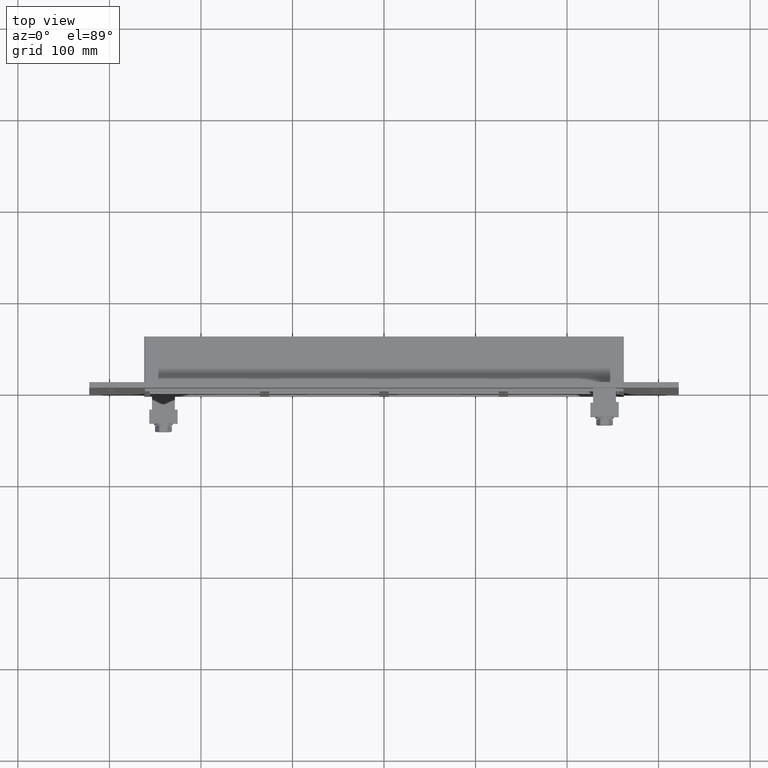
[diagram: clean part render]
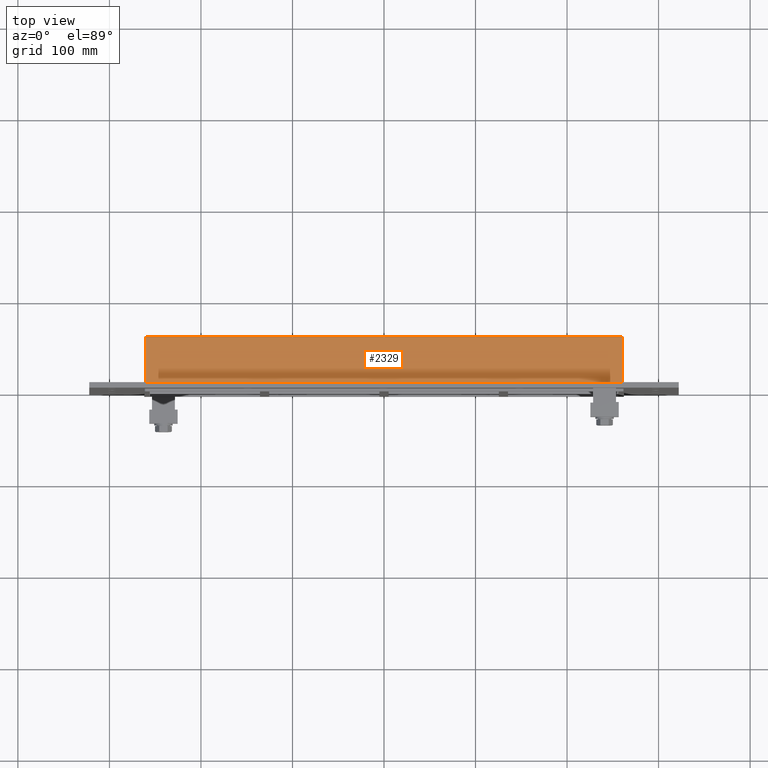
[diagram: same view with one face highlighted and labeled with its STEP entity id]
A machine part, top view. The second image highlights one B-rep face of the part: STEP entity #2329.
In plain terms, the highlighted planar face has unit normal (0, 0, 1).
Its self-contained STEP definition (entity closure, byte-faithful):
#1192=CARTESIAN_POINT('',(-260.0,57.0,171.50000000000003));
#1193=VERTEX_POINT('',#1192);
#1201=CARTESIAN_POINT('',(260.0,57.0,171.50000000000003));
#1202=VERTEX_POINT('',#1201);
#1203=CARTESIAN_POINT('',(-260.0,57.0,171.50000000000003));
#1204=DIRECTION('',(1.0,0.0,0.0));
#1205=VECTOR('',#1204,520.0);
#1206=LINE('',#1203,#1205);
#1207=EDGE_CURVE('',#1193,#1202,#1206,.T.);
#1753=CARTESIAN_POINT('',(-260.0,6.000000000000001,171.50000000000003));
#1754=VERTEX_POINT('',#1753);
#1804=CARTESIAN_POINT('',(260.0,6.000000000000001,171.50000000000003));
#1805=VERTEX_POINT('',#1804);
#1813=CARTESIAN_POINT('',(-260.0,6.000000000000001,171.50000000000003));
#1814=DIRECTION('',(1.0,0.0,0.0));
#1815=VECTOR('',#1814,520.0);
#1816=LINE('',#1813,#1815);
#1817=EDGE_CURVE('',#1754,#1805,#1816,.T.);
#2302=CARTESIAN_POINT('',(-260.0,6.000000000000001,171.50000000000003));
#2303=DIRECTION('',(0.0,1.0,0.0));
#2304=VECTOR('',#2303,51.0);
#2305=LINE('',#2302,#2304);
#2306=EDGE_CURVE('',#1754,#1193,#2305,.T.);
#2313=CARTESIAN_POINT('',(-262.0,0.0,171.50000000000003));
#2314=DIRECTION('',(0.0,0.0,1.0));
#2315=DIRECTION('',(1.0,0.0,0.0));
#2316=AXIS2_PLACEMENT_3D('',#2313,#2314,#2315);
#2317=PLANE('',#2316);
#2318=ORIENTED_EDGE('',*,*,#1817,.T.);
#2319=CARTESIAN_POINT('',(260.0,57.0,171.50000000000003));
#2320=DIRECTION('',(0.0,-1.0,0.0));
#2321=VECTOR('',#2320,51.0);
#2322=LINE('',#2319,#2321);
#2323=EDGE_CURVE('',#1202,#1805,#2322,.T.);
#2324=ORIENTED_EDGE('',*,*,#2323,.F.);
#2325=ORIENTED_EDGE('',*,*,#1207,.F.);
#2326=ORIENTED_EDGE('',*,*,#2306,.F.);
#2327=EDGE_LOOP('',(#2318,#2324,#2325,#2326));
#2328=FACE_OUTER_BOUND('',#2327,.T.);
#2329=ADVANCED_FACE('',(#2328),#2317,.T.);